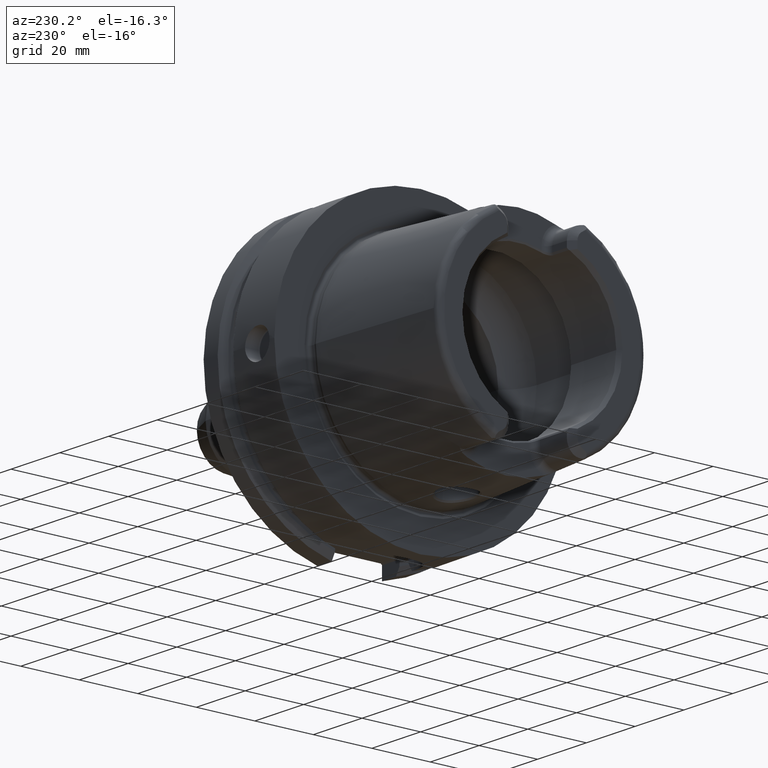
[diagram: clean part render]
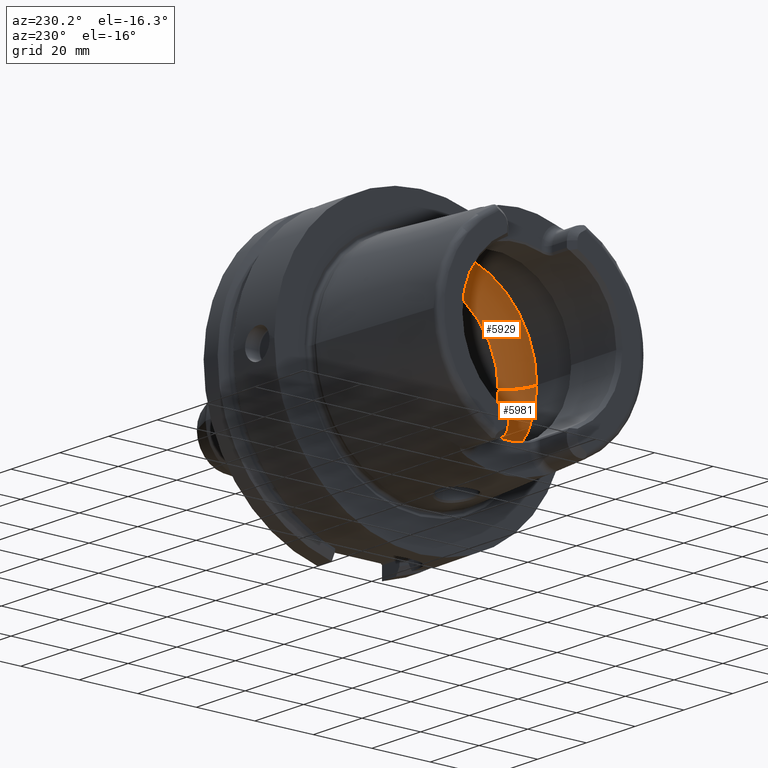
[diagram: same view with one multi-face feature highlighted, each face labeled with its STEP entity id]
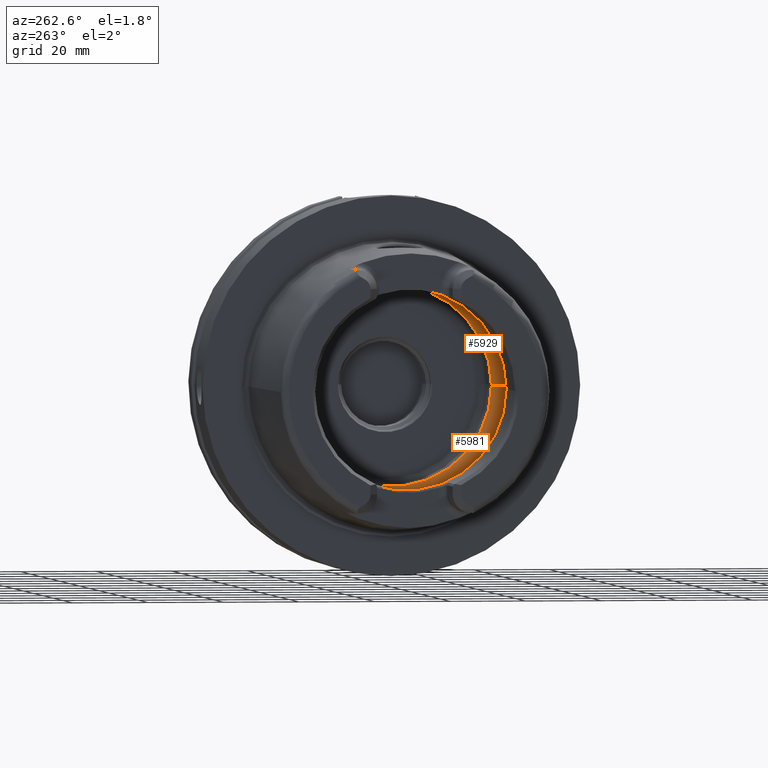
[diagram: same view with one multi-face feature highlighted, each face labeled with its STEP entity id]
A machine part, auxiliary view. The highlighted faces form ONE feature: a constant-radius fillet chain: 2 tangent blend faces with common blend radius 12 mm. The faces share edges in the B-rep.
A second angle (auxiliary view) of the same feature is appended — it is thin or edge-on in the first view.
Their STEP definitions:
[1] entity #5981 (Torus):
#2337=CARTESIAN_POINT('',(-9.846794344809E0,0.E0,0.E0));
#2338=DIRECTION('',(-1.E0,0.E0,0.E0));
#2339=DIRECTION('',(0.E0,-9.756145662299E-2,-9.952295022665E-1));
#2340=AXIS2_PLACEMENT_3D('',#2337,#2338,#2339);
#2350=CARTESIAN_POINT('',(-9.846794344809E0,0.E0,0.E0));
#2351=DIRECTION('',(-1.E0,0.E0,0.E0));
#2352=DIRECTION('',(0.E0,1.E0,0.E0));
#2353=AXIS2_PLACEMENT_3D('',#2350,#2351,#2352);
#2355=CARTESIAN_POINT('',(-9.846794344809E0,3.073185883624E0,
-3.134972932139E1));
#2356=CARTESIAN_POINT('',(-9.738537060689E0,2.891656984993E0,
-3.136752443672E1));
#2357=CARTESIAN_POINT('',(-9.539962893717E0,2.515101251431E0,
-3.139831839188E1));
#2358=CARTESIAN_POINT('',(-9.301049424477E0,1.913783257480E0,
-3.143197673752E1));
#2359=CARTESIAN_POINT('',(-9.127438432729E0,1.286303015996E0,
-3.145454039544E1));
#2360=CARTESIAN_POINT('',(-9.022899506342E0,6.437010581526E-1,
-3.146736051152E1));
#2361=CARTESIAN_POINT('',(-9.E0,2.141354428497E-1,-3.147008518506E1));
#2362=CARTESIAN_POINT('',(-9.E0,0.E0,-3.147008518506E1));
#2364=CARTESIAN_POINT('',(-9.846794344809E0,1.95E1,0.E0));
#2365=DIRECTION('',(0.E0,0.E0,1.E0));
#2366=DIRECTION('',(8.122328620674E-1,5.833333333333E-1,0.E0));
#2367=AXIS2_PLACEMENT_3D('',#2364,#2365,#2366);
#2369=CARTESIAN_POINT('',(-1.E-1,0.E0,0.E0));
#2370=DIRECTION('',(-1.E0,0.E0,0.E0));
#2371=DIRECTION('',(0.E0,1.E0,0.E0));
#2372=AXIS2_PLACEMENT_3D('',#2369,#2370,#2371);
#2374=CARTESIAN_POINT('',(-9.846794344809E0,-1.95E1,0.E0));
#2375=DIRECTION('',(0.E0,0.E0,-1.E0));
#2376=DIRECTION('',(8.122328620674E-1,-5.833333333333E-1,0.E0));
#2377=AXIS2_PLACEMENT_3D('',#2374,#2375,#2376);
#2379=CARTESIAN_POINT('',(-9.E0,0.E0,-3.147008518506E1));
#2380=CARTESIAN_POINT('',(-9.E0,-2.140673862591E-1,-3.147008518506E1));
#2381=CARTESIAN_POINT('',(-9.022884475739E0,-6.435227636510E-1,
-3.146736230982E1));
#2382=CARTESIAN_POINT('',(-9.127385021154E0,-1.286046048393E0,
-3.145454700706E1));
#2383=CARTESIAN_POINT('',(-9.300956096822E0,-1.913519178713E0,
-3.143198945276E1));
#2384=CARTESIAN_POINT('',(-9.539929943663E0,-2.515045104426E0,
-3.139832356097E1));
#2385=CARTESIAN_POINT('',(-9.738527185842E0,-2.891640426569E0,
-3.136752605993E1));
#2386=CARTESIAN_POINT('',(-9.846794344809E0,-3.073185883624E0,
-3.134972932139E1));
#2879=CARTESIAN_POINT('',(-1.E-1,2.65E1,0.E0));
#2880=VERTEX_POINT('',#2879);
#2881=CARTESIAN_POINT('',(-9.846794344809E0,3.15E1,0.E0));
#2882=VERTEX_POINT('',#2881);
#2891=CARTESIAN_POINT('',(-1.E-1,-2.65E1,0.E0));
#2892=VERTEX_POINT('',#2891);
#2893=CARTESIAN_POINT('',(-9.846794344809E0,-3.15E1,0.E0));
#2894=VERTEX_POINT('',#2893);
#3064=VERTEX_POINT('',#2355);
#3065=VERTEX_POINT('',#2362);
#3066=VERTEX_POINT('',#2386);
#5966=CARTESIAN_POINT('',(-9.846794344809E0,0.E0,0.E0));
#5967=DIRECTION('',(1.E0,0.E0,0.E0));
#5968=DIRECTION('',(0.E0,-1.E0,0.E0));
#5969=AXIS2_PLACEMENT_3D('',#5966,#5967,#5968);
#5970=TOROIDAL_SURFACE('',#5969,1.95E1,1.2E1);
#5971=ORIENTED_EDGE('',*,*,#5904,.F.);
#5972=ORIENTED_EDGE('',*,*,#5961,.F.);
#5973=ORIENTED_EDGE('',*,*,#5923,.F.);
#5975=ORIENTED_EDGE('',*,*,#5974,.T.);
#5976=ORIENTED_EDGE('',*,*,#5919,.T.);
#5977=ORIENTED_EDGE('',*,*,#5955,.F.);
#5978=ORIENTED_EDGE('',*,*,#5628,.F.);
#5979=EDGE_LOOP('',(#5971,#5972,#5973,#5975,#5976,#5977,#5978));
#5980=FACE_OUTER_BOUND('',#5979,.F.);
#5981=ADVANCED_FACE('',(#5980),#5970,.F.);
#2341=CIRCLE('',#2340,3.15E1);
#2354=CIRCLE('',#2353,3.15E1);
#2363=B_SPLINE_CURVE_WITH_KNOTS('',3,(#2355,#2356,#2357,#2358,#2359,#2360,#2361,
#2362),.UNSPECIFIED.,.F.,.F.,(4,1,1,1,1,4),(0.E0,2.E-1,4.E-1,6.E-1,8.E-1,1.E0),
.UNSPECIFIED.);
#2368=CIRCLE('',#2367,1.2E1);
#2373=CIRCLE('',#2372,2.65E1);
#2378=CIRCLE('',#2377,1.2E1);
#2387=B_SPLINE_CURVE_WITH_KNOTS('',3,(#2379,#2380,#2381,#2382,#2383,#2384,#2385,
#2386),.UNSPECIFIED.,.F.,.F.,(4,1,1,1,1,4),(0.E0,2.E-1,4.E-1,6.E-1,8.E-1,1.E0),
.UNSPECIFIED.);
#5628=EDGE_CURVE('',#3065,#3066,#2387,.T.);
#5904=EDGE_CURVE('',#3064,#3065,#2363,.T.);
#5919=EDGE_CURVE('',#2892,#2894,#2378,.T.);
#5923=EDGE_CURVE('',#2880,#2882,#2368,.T.);
#5955=EDGE_CURVE('',#3066,#2894,#2341,.T.);
#5961=EDGE_CURVE('',#2882,#3064,#2354,.T.);
#5974=EDGE_CURVE('',#2880,#2892,#2373,.T.);
[2] entity #5929 (Torus):
#2208=CARTESIAN_POINT('',(-9.E0,0.E0,3.147008518506E1));
#2209=CARTESIAN_POINT('',(-9.E0,2.141252053900E-1,3.147008518506E1));
#2210=CARTESIAN_POINT('',(-9.022897579641E0,6.436731047292E-1,
3.146736073712E1));
#2211=CARTESIAN_POINT('',(-9.127427069178E0,1.286248325661E0,3.145454181001E1));
#2212=CARTESIAN_POINT('',(-9.301031145484E0,1.913730198969E0,3.143197920586E1));
#2213=CARTESIAN_POINT('',(-9.539946842554E0,2.515068696018E0,3.139832080387E1));
#2214=CARTESIAN_POINT('',(-9.738529982809E0,2.891645116602E0,3.136752560017E1));
#2215=CARTESIAN_POINT('',(-9.846794344809E0,3.073185883624E0,3.134972932139E1));
#2217=CARTESIAN_POINT('',(-9.846794344809E0,-3.073185883624E0,
3.134972932139E1));
#2218=CARTESIAN_POINT('',(-9.738534471789E0,-2.891652643851E0,
3.136752486228E1));
#2219=CARTESIAN_POINT('',(-9.539946477828E0,-2.515078628379E0,
3.139832107651E1));
#2220=CARTESIAN_POINT('',(-9.300974895981E0,-1.913573808680E0,
3.143198691417E1));
#2221=CARTESIAN_POINT('',(-9.127396838585E0,-1.286102505522E0,
3.145454553504E1));
#2222=CARTESIAN_POINT('',(-9.022886850943E0,-6.435548392987E-1,
3.146736203025E1));
#2223=CARTESIAN_POINT('',(-9.E0,-2.140793620984E-1,3.147008518506E1));
#2224=CARTESIAN_POINT('',(-9.E0,0.E0,3.147008518506E1));
#2226=CARTESIAN_POINT('',(-1.E-1,0.E0,0.E0));
#2227=DIRECTION('',(1.E0,0.E0,0.E0));
#2228=DIRECTION('',(0.E0,1.E0,0.E0));
#2229=AXIS2_PLACEMENT_3D('',#2226,#2227,#2228);
#2255=CARTESIAN_POINT('',(-9.846794344809E0,0.E0,0.E0));
#2256=DIRECTION('',(1.E0,0.E0,0.E0));
#2257=DIRECTION('',(0.E0,1.E0,0.E0));
#2258=AXIS2_PLACEMENT_3D('',#2255,#2256,#2257);
#2260=CARTESIAN_POINT('',(-9.846794344809E0,0.E0,0.E0));
#2261=DIRECTION('',(1.E0,0.E0,0.E0));
#2262=DIRECTION('',(0.E0,-9.756145662299E-2,9.952295022665E-1));
#2263=AXIS2_PLACEMENT_3D('',#2260,#2261,#2262);
#2364=CARTESIAN_POINT('',(-9.846794344809E0,1.95E1,0.E0));
#2365=DIRECTION('',(0.E0,0.E0,1.E0));
#2366=DIRECTION('',(8.122328620674E-1,5.833333333333E-1,0.E0));
#2367=AXIS2_PLACEMENT_3D('',#2364,#2365,#2366);
#2374=CARTESIAN_POINT('',(-9.846794344809E0,-1.95E1,0.E0));
#2375=DIRECTION('',(0.E0,0.E0,-1.E0));
#2376=DIRECTION('',(8.122328620674E-1,-5.833333333333E-1,0.E0));
#2377=AXIS2_PLACEMENT_3D('',#2374,#2375,#2376);
#2879=CARTESIAN_POINT('',(-1.E-1,2.65E1,0.E0));
#2880=VERTEX_POINT('',#2879);
#2881=CARTESIAN_POINT('',(-9.846794344809E0,3.15E1,0.E0));
#2882=VERTEX_POINT('',#2881);
#2891=CARTESIAN_POINT('',(-1.E-1,-2.65E1,0.E0));
#2892=VERTEX_POINT('',#2891);
#2893=CARTESIAN_POINT('',(-9.846794344809E0,-3.15E1,0.E0));
#2894=VERTEX_POINT('',#2893);
#3060=VERTEX_POINT('',#2208);
#3061=VERTEX_POINT('',#2215);
#3062=VERTEX_POINT('',#2217);
#5910=CARTESIAN_POINT('',(-9.846794344809E0,0.E0,0.E0));
#5911=DIRECTION('',(1.E0,0.E0,0.E0));
#5912=DIRECTION('',(0.E0,-1.E0,0.E0));
#5913=AXIS2_PLACEMENT_3D('',#5910,#5911,#5912);
#5914=TOROIDAL_SURFACE('',#5913,1.95E1,1.2E1);
#5915=ORIENTED_EDGE('',*,*,#5887,.F.);
#5916=ORIENTED_EDGE('',*,*,#5613,.F.);
#5918=ORIENTED_EDGE('',*,*,#5917,.T.);
#5920=ORIENTED_EDGE('',*,*,#5919,.F.);
#5922=ORIENTED_EDGE('',*,*,#5921,.F.);
#5924=ORIENTED_EDGE('',*,*,#5923,.T.);
#5926=ORIENTED_EDGE('',*,*,#5925,.T.);
#5927=EDGE_LOOP('',(#5915,#5916,#5918,#5920,#5922,#5924,#5926));
#5928=FACE_OUTER_BOUND('',#5927,.F.);
#5929=ADVANCED_FACE('',(#5928),#5914,.F.);
#2216=B_SPLINE_CURVE_WITH_KNOTS('',3,(#2208,#2209,#2210,#2211,#2212,#2213,#2214,
#2215),.UNSPECIFIED.,.F.,.F.,(4,1,1,1,1,4),(0.E0,2.E-1,4.E-1,6.E-1,8.E-1,1.E0),
.UNSPECIFIED.);
#2225=B_SPLINE_CURVE_WITH_KNOTS('',3,(#2217,#2218,#2219,#2220,#2221,#2222,#2223,
#2224),.UNSPECIFIED.,.F.,.F.,(4,1,1,1,1,4),(0.E0,2.E-1,4.E-1,6.E-1,8.E-1,1.E0),
.UNSPECIFIED.);
#2230=CIRCLE('',#2229,2.65E1);
#2259=CIRCLE('',#2258,3.15E1);
#2264=CIRCLE('',#2263,3.15E1);
#2368=CIRCLE('',#2367,1.2E1);
#2378=CIRCLE('',#2377,1.2E1);
#5613=EDGE_CURVE('',#3062,#3060,#2225,.T.);
#5887=EDGE_CURVE('',#3060,#3061,#2216,.T.);
#5917=EDGE_CURVE('',#3062,#2894,#2264,.T.);
#5919=EDGE_CURVE('',#2892,#2894,#2378,.T.);
#5921=EDGE_CURVE('',#2880,#2892,#2230,.T.);
#5923=EDGE_CURVE('',#2880,#2882,#2368,.T.);
#5925=EDGE_CURVE('',#2882,#3061,#2259,.T.);